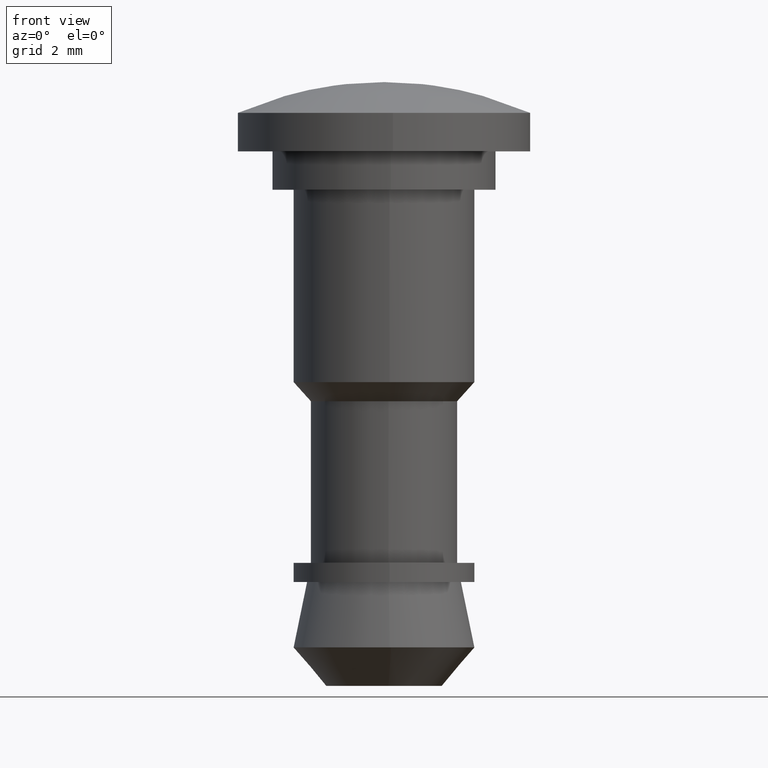
[diagram: clean part render]
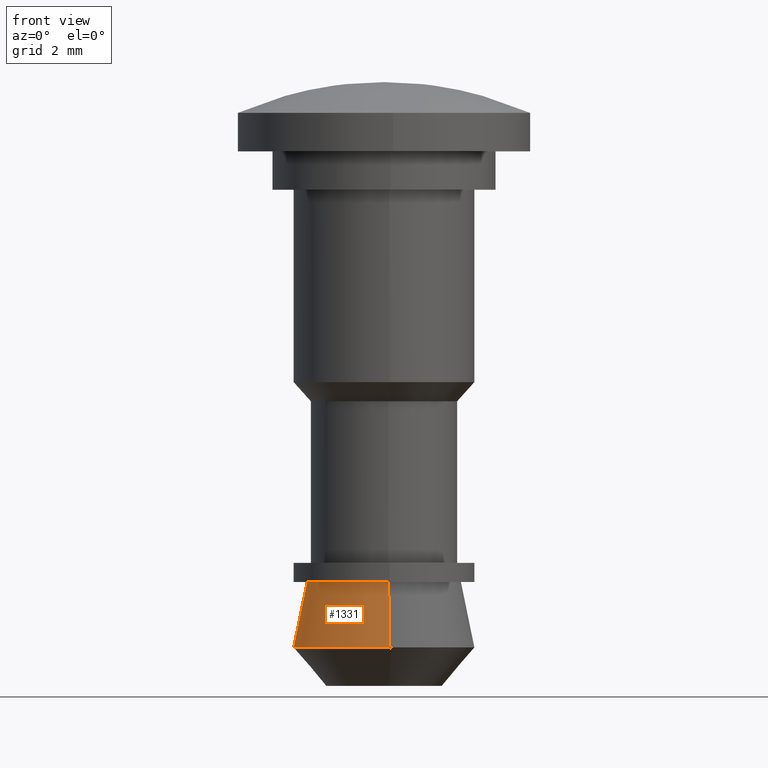
[diagram: same view with one face highlighted and labeled with its STEP entity id]
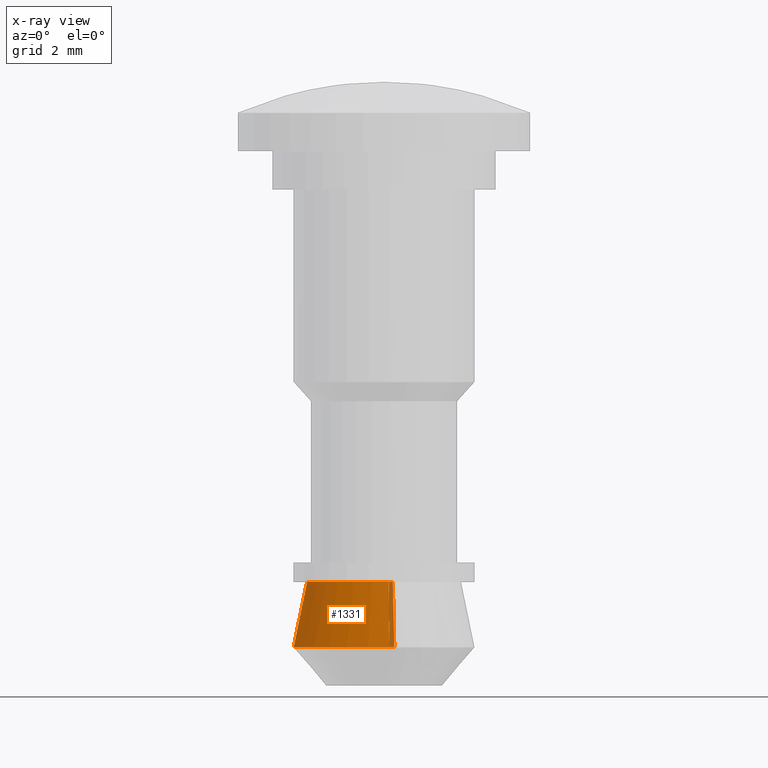
[diagram: x-ray of the same camera — body ghosted, the highlighted face saturated]
A machine part, front view. The second image highlights one B-rep face of the part: STEP entity #1331.
The next image is the same camera in x-ray: the body ghosted, the highlighted face saturated — about 5% of this face is hidden behind the body in this view.
In plain terms, the highlighted face is a freeform B-spline surface patch.
Its self-contained STEP definition (entity closure, byte-faithful):
#1134=CARTESIAN_POINT('',(0.268134337341499,2.334633233307837,-11.899905292479900));
#1135=VERTEX_POINT('',#1134);
#1151=CARTESIAN_POINT('',(0.228201329487757,1.986938386870842,-10.200000000001090));
#1152=VERTEX_POINT('',#1151);
#1153=CARTESIAN_POINT('',(0.228201329487757,1.986938386870842,-10.200000000001090));
#1154=CARTESIAN_POINT('',(0.268134337341499,2.334633233307837,-11.899905292479900));
#1155=QUASI_UNIFORM_CURVE('',1,(#1153,#1154),.UNSPECIFIED.,.F.,.U.);
#1156=EDGE_CURVE('',#1152,#1135,#1155,.T.);
#1173=CARTESIAN_POINT('',(0.122097079075375,-1.996269596843554,-10.200000000000831));
#1174=VERTEX_POINT('',#1173);
#1188=CARTESIAN_POINT('',(0.143462680551902,-2.345597283323410,-11.899905085086820));
#1189=VERTEX_POINT('',#1188);
#1190=CARTESIAN_POINT('',(0.122097079075375,-1.996269596843554,-10.200000000000831));
#1191=CARTESIAN_POINT('',(0.143462680551902,-2.345597283323410,-11.899905085086820));
#1192=QUASI_UNIFORM_CURVE('',1,(#1190,#1191),.UNSPECIFIED.,.F.,.U.);
#1193=EDGE_CURVE('',#1174,#1189,#1192,.T.);
#1226=CARTESIAN_POINT('',(0.121562934107821,-1.987536403913495,-10.157502367688020));
#1227=CARTESIAN_POINT('',(-1.865973469805673,-2.109099338021316,-10.157502367688023));
#1228=CARTESIAN_POINT('',(-1.987536403913495,-0.121562934107821,-10.157502367688020));
#1229=CARTESIAN_POINT('',(-2.109099338021316,1.865973469805673,-10.157502367688023));
#1230=CARTESIAN_POINT('',(-0.121562934107821,1.987536403913495,-10.157502367688020));
#1231=CARTESIAN_POINT('',(0.053228551065286,1.998227109126677,-10.157502367688023));
#1232=CARTESIAN_POINT('',(0.227203004284343,1.978246015710497,-10.157502367688023));
#1233=CARTESIAN_POINT('',(0.144010376131358,-2.354548836806457,-11.943465365598801));
#1234=CARTESIAN_POINT('',(-2.210538460675099,-2.498559212937815,-11.943465365598799));
#1235=CARTESIAN_POINT('',(-2.354548836806457,-0.144010376131358,-11.943465365598801));
#1236=CARTESIAN_POINT('',(-2.498559212937815,2.210538460675099,-11.943465365598799));
#1237=CARTESIAN_POINT('',(-0.144010376131358,2.354548836806457,-11.943465365598801));
#1238=CARTESIAN_POINT('',(0.063057573561364,2.367213655158853,-11.943465365598797));
#1239=CARTESIAN_POINT('',(0.269157620662085,2.343542913748256,-11.943465365598799));
#1247=(BOUNDED_SURFACE()B_SPLINE_SURFACE(2,1,((#1226,#1233),(#1227,#1234),(#1228,#1235),(#1229,#1236),(#1230,#1237),(#1231,#1238),(#1232,#1239)),.UNSPECIFIED.,.F.,.F.,.U.)B_SPLINE_SURFACE_WITH_KNOTS((3,2,2,3),(2,2),(0.0,3.908434263656721,7.816868527313441,8.285880638952248),(0.0,1.0),.UNSPECIFIED.)GEOMETRIC_REPRESENTATION_ITEM()RATIONAL_B_SPLINE_SURFACE(((1.0,1.0),(0.707106781186548,0.707106781186548),(1.0,1.0),(0.707106781186548,0.707106781186548),(1.0,1.0),(0.964852813742386,0.964852813742386),(0.938140952186599,0.938140952186599)))REPRESENTATION_ITEM('')SURFACE());
#1248=CARTESIAN_POINT('',(-0.184377345145986,2.342736295774615,-11.899905292474889));
#1249=VERTEX_POINT('',#1248);
#1250=CARTESIAN_POINT('',(-0.184377345145986,2.342736295774615,-11.899905292474884));
#1251=CARTESIAN_POINT('',(-0.092330985394153,2.349980501392749,-11.899905292479023));
#1252=CARTESIAN_POINT('',(0.0,2.349980501392750,-11.899905292479019));
#1253=CARTESIAN_POINT('',(0.134506386268806,2.349980501392750,-11.899905292479028));
#1254=CARTESIAN_POINT('',(0.268134337341499,2.334633233307837,-11.899905292479909));
#1262=(BOUNDED_CURVE()B_SPLINE_CURVE(2,(#1250,#1251,#1252,#1253,#1254),.UNSPECIFIED.,.F.,.U.)B_SPLINE_CURVE_WITH_KNOTS((3,2,3),(0.236331300628616,0.250000000000000,0.269767755877433),.UNSPECIFIED.)CURVE()GEOMETRIC_REPRESENTATION_ITEM()RATIONAL_B_SPLINE_CURVE((0.969723356163153,0.983986122576488,1.0,0.976840633409361,0.957343736459040))REPRESENTATION_ITEM(''));
#1263=EDGE_CURVE('',#1249,#1135,#1262,.T.);
#1264=ORIENTED_EDGE('',*,*,#1263,.F.);
#1265=CARTESIAN_POINT('',(-2.349980501392750,0.0,-11.899905292479019));
#1266=VERTEX_POINT('',#1265);
#1267=CARTESIAN_POINT('',(-2.349980501392750,0.0,-11.899905292479019));
#1268=CARTESIAN_POINT('',(-2.349980501392750,2.172299631016881,-11.899905292479023));
#1269=CARTESIAN_POINT('',(-0.184377345145986,2.342736295774615,-11.899905292474884));
#1277=(BOUNDED_CURVE()B_SPLINE_CURVE(2,(#1267,#1268,#1269),.UNSPECIFIED.,.F.,.U.)B_SPLINE_CURVE_WITH_KNOTS((3,3),(0.0,0.236331300628616),.UNSPECIFIED.)CURVE()GEOMETRIC_REPRESENTATION_ITEM()RATIONAL_B_SPLINE_CURVE((1.0,0.723120658610060,0.969723356163153))REPRESENTATION_ITEM(''));
#1278=EDGE_CURVE('',#1266,#1249,#1277,.T.);
#1279=ORIENTED_EDGE('',*,*,#1278,.F.);
#1280=CARTESIAN_POINT('',(0.143462680551902,-2.345597283323410,-11.899905085086829));
#1281=CARTESIAN_POINT('',(0.071798203083470,-2.349980501392750,-11.899905292479025));
#1282=CARTESIAN_POINT('',(0.0,-2.349980501392750,-11.899905292479019));
#1283=CARTESIAN_POINT('',(-2.349980501392750,-2.349980501392750,-11.899905292479025));
#1284=CARTESIAN_POINT('',(-2.349980501392750,0.0,-11.899905292479019));
#1292=(BOUNDED_CURVE()B_SPLINE_CURVE(2,(#1280,#1281,#1282,#1283,#1284),.UNSPECIFIED.,.F.,.U.)B_SPLINE_CURVE_WITH_KNOTS((3,2,3),(0.739332990840932,0.750000000000000,1.0),.UNSPECIFIED.)CURVE()GEOMETRIC_REPRESENTATION_ITEM()RATIONAL_B_SPLINE_CURVE((0.976072102966233,0.987502821409152,1.0,0.707106781186548,1.0))REPRESENTATION_ITEM(''));
#1293=EDGE_CURVE('',#1189,#1266,#1292,.T.);
#1294=ORIENTED_EDGE('',*,*,#1293,.F.);
#1295=ORIENTED_EDGE('',*,*,#1193,.F.);
#1296=CARTESIAN_POINT('',(-2.0,0.0,-10.199999999999999));
#1297=VERTEX_POINT('',#1296);
#1298=CARTESIAN_POINT('',(0.122097079075375,-1.996269596843554,-10.200000000000829));
#1299=CARTESIAN_POINT('',(0.061105526602845,-2.000000000000000,-10.199999999999999));
#1300=CARTESIAN_POINT('',(0.0,-2.0,-10.199999999999999));
#1301=CARTESIAN_POINT('',(-2.000000000000000,-2.000000000000000,-10.200000000000001));
#1302=CARTESIAN_POINT('',(-2.0,0.0,-10.199999999999999));
#1310=(BOUNDED_CURVE()B_SPLINE_CURVE(2,(#1298,#1299,#1300,#1301,#1302),.UNSPECIFIED.,.F.,.U.)B_SPLINE_CURVE_WITH_KNOTS((3,2,3),(0.739332962240991,0.750000000000000,1.0),.UNSPECIFIED.)CURVE()GEOMETRIC_REPRESENTATION_ITEM()RATIONAL_B_SPLINE_CURVE((0.976072041671108,0.987502787902237,1.0,0.707106781186548,1.0))REPRESENTATION_ITEM(''));
#1311=EDGE_CURVE('',#1174,#1297,#1310,.T.);
#1312=ORIENTED_EDGE('',*,*,#1311,.T.);
#1313=CARTESIAN_POINT('',(-2.0,0.0,-10.199999999999999));
#1314=CARTESIAN_POINT('',(-2.000000000000000,2.000000000000000,-10.200000000000001));
#1315=CARTESIAN_POINT('',(0.0,2.0,-10.199999999999999));
#1316=CARTESIAN_POINT('',(0.114474470057665,2.0,-10.200000000000001));
#1317=CARTESIAN_POINT('',(0.228201329487757,1.986938386870842,-10.200000000001090));
#1325=(BOUNDED_CURVE()B_SPLINE_CURVE(2,(#1313,#1314,#1315,#1316,#1317),.UNSPECIFIED.,.F.,.U.)B_SPLINE_CURVE_WITH_KNOTS((3,2,3),(0.0,0.250000000000000,0.269767755877803),.UNSPECIFIED.)CURVE()GEOMETRIC_REPRESENTATION_ITEM()RATIONAL_B_SPLINE_CURVE((1.0,0.707106781186548,1.0,0.976840633408926,0.957343736458308))REPRESENTATION_ITEM(''));
#1326=EDGE_CURVE('',#1297,#1152,#1325,.T.);
#1327=ORIENTED_EDGE('',*,*,#1326,.T.);
#1328=ORIENTED_EDGE('',*,*,#1156,.T.);
#1329=EDGE_LOOP('',(#1264,#1279,#1294,#1295,#1312,#1327,#1328));
#1330=FACE_OUTER_BOUND('',#1329,.T.);
#1331=ADVANCED_FACE('',(#1330),#1247,.T.);